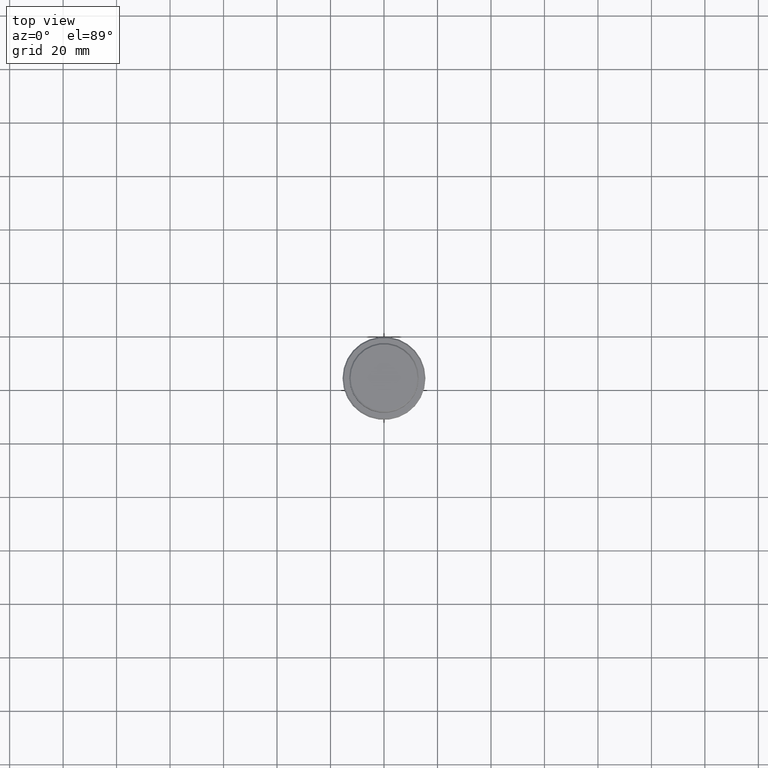
[diagram: clean part render]
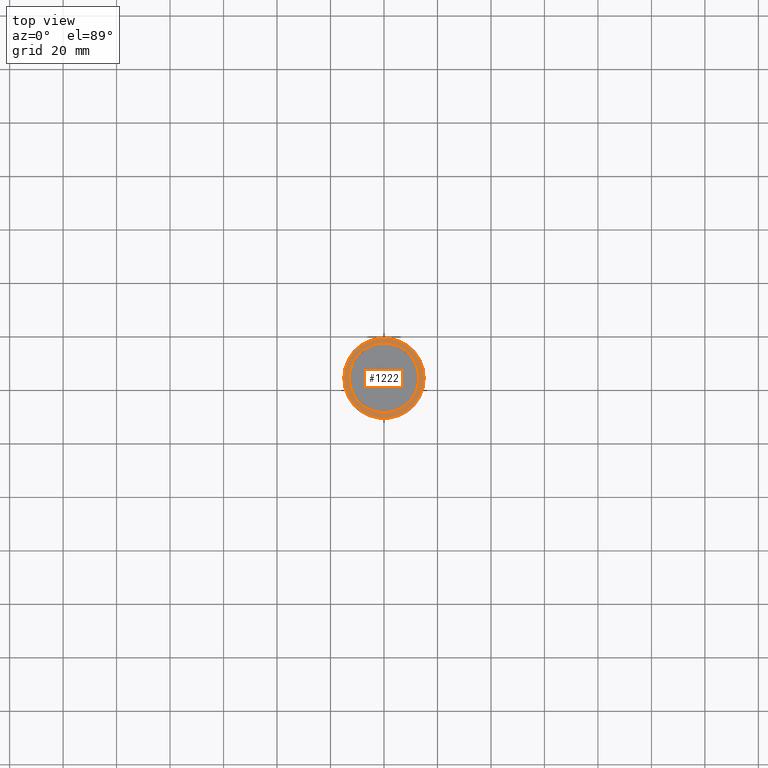
[diagram: same view with one face highlighted and labeled with its STEP entity id]
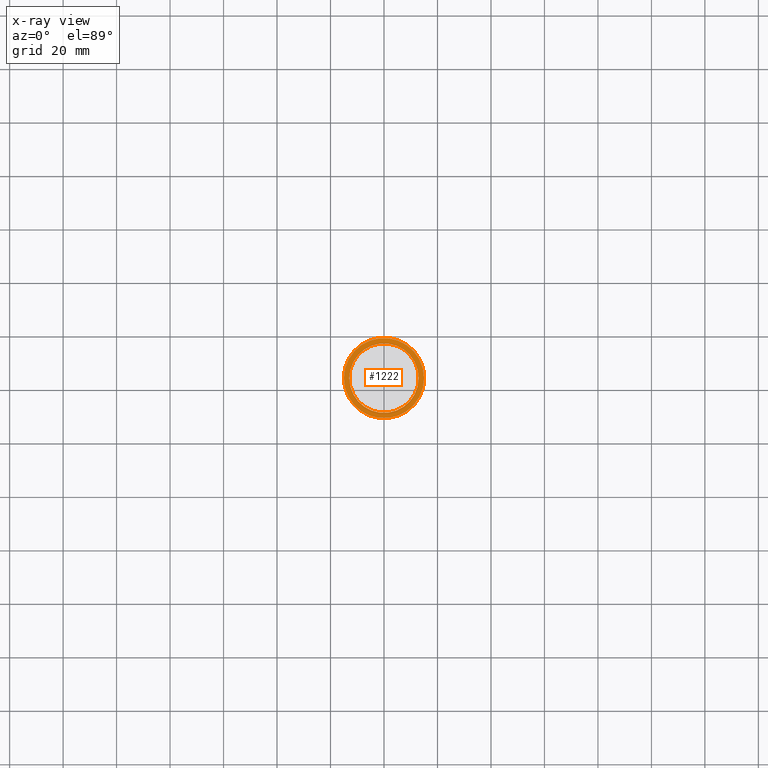
[diagram: x-ray of the same camera — body ghosted, the highlighted face saturated]
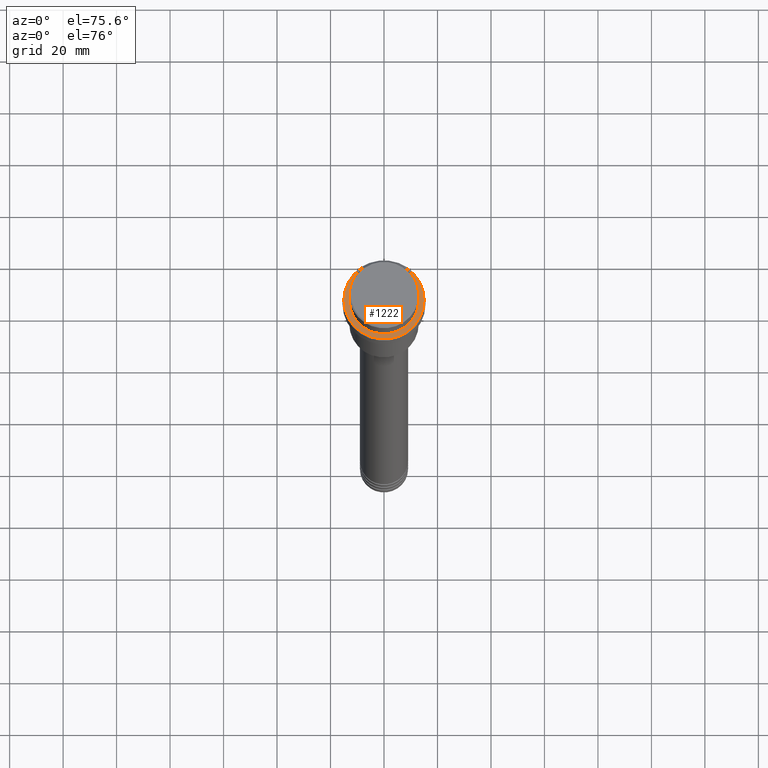
[diagram: same view with one face highlighted and labeled with its STEP entity id]
A machine part, top view. The second image highlights one B-rep face of the part: STEP entity #1222.
The next image is the same camera in x-ray: the body ghosted, the highlighted face saturated — about 0% of this face is hidden behind the body in this view.
A second angle (auxiliary view) of the same face is appended — the face is thin or edge-on in the first view.
In plain terms, the highlighted planar face has unit normal (0, -0, 1).
Its self-contained STEP definition (entity closure, byte-faithful):
#5 = ORIENTED_EDGE ( 'NONE', *, *, #705, .T. ) ;
#22 = PLANE ( 'NONE',  #537 ) ;
#45 = CARTESIAN_POINT ( 'NONE',  ( 15.00000000000001421, 1.867586368699714559E-15, -9.000000000000000000 ) ) ;
#46 = VERTEX_POINT ( 'NONE', #45 ) ;
#49 = DIRECTION ( 'NONE',  ( 0.000000000000000000, 0.000000000000000000, -1.000000000000000000 ) ) ;
#96 = DIRECTION ( 'NONE',  ( 1.000000000000000000, 0.000000000000000000, 0.000000000000000000 ) ) ;
#155 = CARTESIAN_POINT ( 'NONE',  ( -15.00000000000001421, 0.000000000000000000, -9.000000000000000000 ) ) ;
#191 = AXIS2_PLACEMENT_3D ( 'NONE', #580, #449, #1116 ) ;
#194 = VERTEX_POINT ( 'NONE', #222 ) ;
#222 = CARTESIAN_POINT ( 'NONE',  ( -12.99999999999999467, 1.592040838891558504E-15, -9.000000000000000000 ) ) ;
#231 = CIRCLE ( 'NONE', #1133, 12.99999999999999467 ) ;
#242 = VERTEX_POINT ( 'NONE', #1324 ) ;
#272 = CARTESIAN_POINT ( 'NONE',  ( 0.000000000000000000, 0.000000000000000000, -9.000000000000000000 ) ) ;
#317 = ORIENTED_EDGE ( 'NONE', *, *, #564, .T. ) ;
#379 = ORIENTED_EDGE ( 'NONE', *, *, #770, .T. ) ;
#449 = DIRECTION ( 'NONE',  ( -0.000000000000000000, -0.000000000000000000, 1.000000000000000000 ) ) ;
#489 = DIRECTION ( 'NONE',  ( 1.000000000000000000, 0.000000000000000000, 0.000000000000000000 ) ) ;
#509 = VERTEX_POINT ( 'NONE', #155 ) ;
#534 = CIRCLE ( 'NONE', #711, 15.00000000000001421 ) ;
#537 = AXIS2_PLACEMENT_3D ( 'NONE', #891, #1225, #1131 ) ;
#564 = EDGE_CURVE ( 'NONE', #242, #194, #231, .T. ) ;
#572 = FACE_OUTER_BOUND ( 'NONE', #583, .T. ) ;
#580 = CARTESIAN_POINT ( 'NONE',  ( 0.000000000000000000, 0.000000000000000000, -9.000000000000000000 ) ) ;
#583 = EDGE_LOOP ( 'NONE', ( #5, #379 ) ) ;
#645 = CIRCLE ( 'NONE', #761, 12.99999999999999467 ) ;
#705 = EDGE_CURVE ( 'NONE', #509, #46, #534, .T. ) ;
#711 = AXIS2_PLACEMENT_3D ( 'NONE', #872, #1319, #1299 ) ;
#761 = AXIS2_PLACEMENT_3D ( 'NONE', #272, #49, #489 ) ;
#770 = EDGE_CURVE ( 'NONE', #46, #509, #1249, .T. ) ;
#850 = ORIENTED_EDGE ( 'NONE', *, *, #979, .T. ) ;
#872 = CARTESIAN_POINT ( 'NONE',  ( 0.000000000000000000, 0.000000000000000000, -9.000000000000000000 ) ) ;
#891 = CARTESIAN_POINT ( 'NONE',  ( 0.000000000000000000, 12.49999999999999289, -9.000000000000000000 ) ) ;
#979 = EDGE_CURVE ( 'NONE', #194, #242, #645, .T. ) ;
#1013 = FACE_BOUND ( 'NONE', #1195, .T. ) ;
#1082 = CARTESIAN_POINT ( 'NONE',  ( 0.000000000000000000, 0.000000000000000000, -9.000000000000000000 ) ) ;
#1116 = DIRECTION ( 'NONE',  ( 1.000000000000000000, 0.000000000000000000, 0.000000000000000000 ) ) ;
#1131 = DIRECTION ( 'NONE',  ( 1.000000000000000000, 0.000000000000000000, 0.000000000000000000 ) ) ;
#1133 = AXIS2_PLACEMENT_3D ( 'NONE', #1082, #1190, #96 ) ;
#1190 = DIRECTION ( 'NONE',  ( 0.000000000000000000, 0.000000000000000000, -1.000000000000000000 ) ) ;
#1195 = EDGE_LOOP ( 'NONE', ( #317, #850 ) ) ;
#1222 = ADVANCED_FACE ( 'NONE', ( #572, #1013 ), #22, .T. ) ;
#1225 = DIRECTION ( 'NONE',  ( 0.000000000000000000, -0.000000000000000000, 1.000000000000000000 ) ) ;
#1249 = CIRCLE ( 'NONE', #191, 15.00000000000001421 ) ;
#1299 = DIRECTION ( 'NONE',  ( 1.000000000000000000, 0.000000000000000000, 0.000000000000000000 ) ) ;
#1319 = DIRECTION ( 'NONE',  ( -0.000000000000000000, -0.000000000000000000, 1.000000000000000000 ) ) ;
#1324 = CARTESIAN_POINT ( 'NONE',  ( 12.99999999999999467, 0.000000000000000000, -9.000000000000000000 ) ) ;